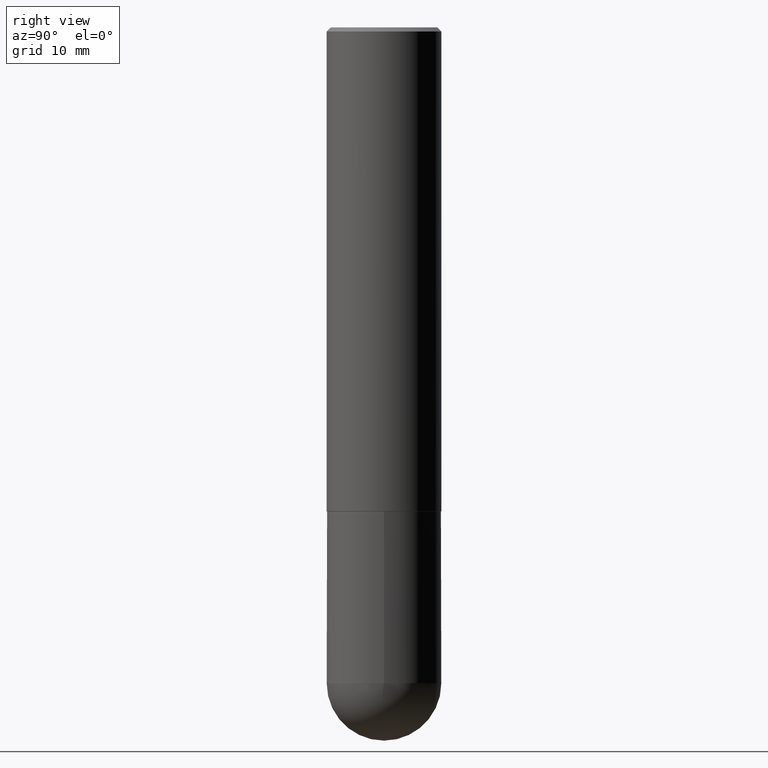
[diagram: clean part render]
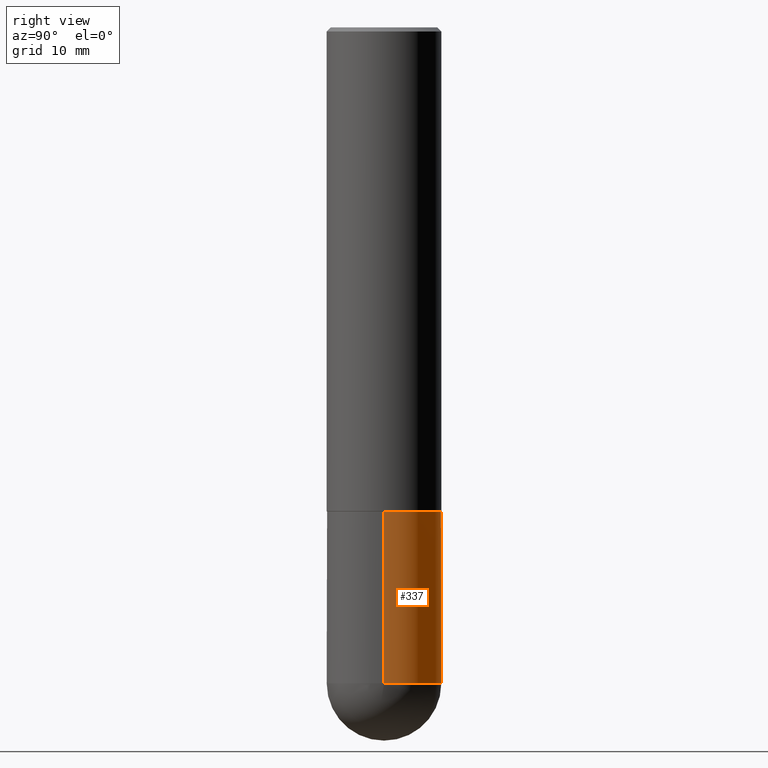
[diagram: same view with one face highlighted and labeled with its STEP entity id]
A machine part, right view. The second image highlights one B-rep face of the part: STEP entity #337.
In plain terms, the highlighted cylindrical surface (partial cylindrical patch) has radius 7.1438 mm, axis along (-0, 0, 1).
Its self-contained STEP definition (entity closure, byte-faithful):
#13 = AXIS2_PLACEMENT_3D ( 'NONE', #359, #51, #406 ) ;
#14 = EDGE_LOOP ( 'NONE', ( #297, #274, #179, #370, #148 ) ) ;
#16 = EDGE_CURVE ( 'NONE', #57, #115, #314, .T. ) ;
#24 = CYLINDRICAL_SURFACE ( 'NONE', #13, 0.2812500000000000555 ) ;
#26 = EDGE_CURVE ( 'NONE', #115, #241, #134, .T. ) ;
#32 = DIRECTION ( 'NONE',  ( 1.000000000000000000, -6.982962677686268288E-15, 0.000000000000000000 ) ) ;
#51 = DIRECTION ( 'NONE',  ( -2.445468806185136597E-29, 3.491481338843145583E-15, 1.000000000000000000 ) ) ;
#57 = VERTEX_POINT ( 'NONE', #193 ) ;
#71 = CARTESIAN_POINT ( 'NONE',  ( 0.2812500000000000000, -1.025622643285173184E-14, -2.374999999999999556 ) ) ;
#81 = CARTESIAN_POINT ( 'NONE',  ( -0.2812500000000000555, 1.998401444325282167E-15, -1.383450494134192269E-29 ) ) ;
#114 = DIRECTION ( 'NONE',  ( -2.445468806185136877E-29, 3.491481338843145188E-15, 1.000000000000000000 ) ) ;
#115 = VERTEX_POINT ( 'NONE', #407 ) ;
#116 = CARTESIAN_POINT ( 'NONE',  ( 0.2812500000000000555, -1.963958253099262907E-15, 1.371424718192607012E-29 ) ) ;
#133 = VECTOR ( 'NONE', #244, 39.37007874015748143 ) ;
#134 = CIRCLE ( 'NONE', #188, 0.2812500000000000555 ) ;
#148 = ORIENTED_EDGE ( 'NONE', *, *, #16, .T. ) ;
#150 = AXIS2_PLACEMENT_3D ( 'NONE', #279, #271, #402 ) ;
#161 = CARTESIAN_POINT ( 'NONE',  ( 7.871352719908407300E-29, -1.123820555940137375E-14, -3.218749999999999556 ) ) ;
#179 = ORIENTED_EDGE ( 'NONE', *, *, #388, .F. ) ;
#188 = AXIS2_PLACEMENT_3D ( 'NONE', #161, #318, #348 ) ;
#193 = CARTESIAN_POINT ( 'NONE',  ( 0.2812500000000000555, -1.172919512267618602E-14, -3.218749999999999556 ) ) ;
#199 = CARTESIAN_POINT ( 'NONE',  ( -0.2812500000000000555, -7.766835425251639371E-15, -3.218749999999999556 ) ) ;
#211 = VERTEX_POINT ( 'NONE', #71 ) ;
#239 = LINE ( 'NONE', #81, #384 ) ;
#241 = VERTEX_POINT ( 'NONE', #199 ) ;
#244 = DIRECTION ( 'NONE',  ( -2.445468806185136877E-29, 3.491481338843145188E-15, 1.000000000000000000 ) ) ;
#271 = DIRECTION ( 'NONE',  ( -2.445468806185136597E-29, 3.491481338843145583E-15, 1.000000000000000000 ) ) ;
#274 = ORIENTED_EDGE ( 'NONE', *, *, #286, .T. ) ;
#279 = CARTESIAN_POINT ( 'NONE',  ( 5.807988414689698296E-29, -8.292268179752468540E-15, -2.374999999999999556 ) ) ;
#286 = EDGE_CURVE ( 'NONE', #241, #397, #239, .T. ) ;
#291 = EDGE_CURVE ( 'NONE', #57, #211, #330, .T. ) ;
#297 = ORIENTED_EDGE ( 'NONE', *, *, #26, .T. ) ;
#298 = CARTESIAN_POINT ( 'NONE',  ( -0.2812500000000000000, -7.766835425251637793E-15, -2.374999999999999556 ) ) ;
#309 = FACE_OUTER_BOUND ( 'NONE', #14, .T. ) ;
#314 = CIRCLE ( 'NONE', #347, 0.2812500000000000555 ) ;
#315 = CIRCLE ( 'NONE', #150, 0.2812500000000000000 ) ;
#316 = DIRECTION ( 'NONE',  ( -2.445468806185136597E-29, 3.491481338843145583E-15, 1.000000000000000000 ) ) ;
#318 = DIRECTION ( 'NONE',  ( -2.445468806185136597E-29, 3.491481338843145583E-15, 1.000000000000000000 ) ) ;
#330 = LINE ( 'NONE', #116, #133 ) ;
#337 = ADVANCED_FACE ( 'NONE', ( #309 ), #24, .T. ) ;
#347 = AXIS2_PLACEMENT_3D ( 'NONE', #383, #316, #32 ) ;
#348 = DIRECTION ( 'NONE',  ( 1.000000000000000000, -6.982962677686268288E-15, 0.000000000000000000 ) ) ;
#359 = CARTESIAN_POINT ( 'NONE',  ( 0.000000000000000000, 0.000000000000000000, 0.000000000000000000 ) ) ;
#370 = ORIENTED_EDGE ( 'NONE', *, *, #291, .F. ) ;
#383 = CARTESIAN_POINT ( 'NONE',  ( 7.871352719908407300E-29, -1.123820555940137375E-14, -3.218749999999999556 ) ) ;
#384 = VECTOR ( 'NONE', #114, 39.37007874015748143 ) ;
#388 = EDGE_CURVE ( 'NONE', #211, #397, #315, .T. ) ;
#397 = VERTEX_POINT ( 'NONE', #298 ) ;
#402 = DIRECTION ( 'NONE',  ( 1.000000000000000000, -6.982962677686269866E-15, 0.000000000000000000 ) ) ;
#406 = DIRECTION ( 'NONE',  ( 1.000000000000000000, -6.982962677686266711E-15, 4.876176775795935232E-29 ) ) ;
#407 = CARTESIAN_POINT ( 'NONE',  ( 1.963958253099340610E-15, 0.2812499999999886757, -3.218750000000000888 ) ) ;